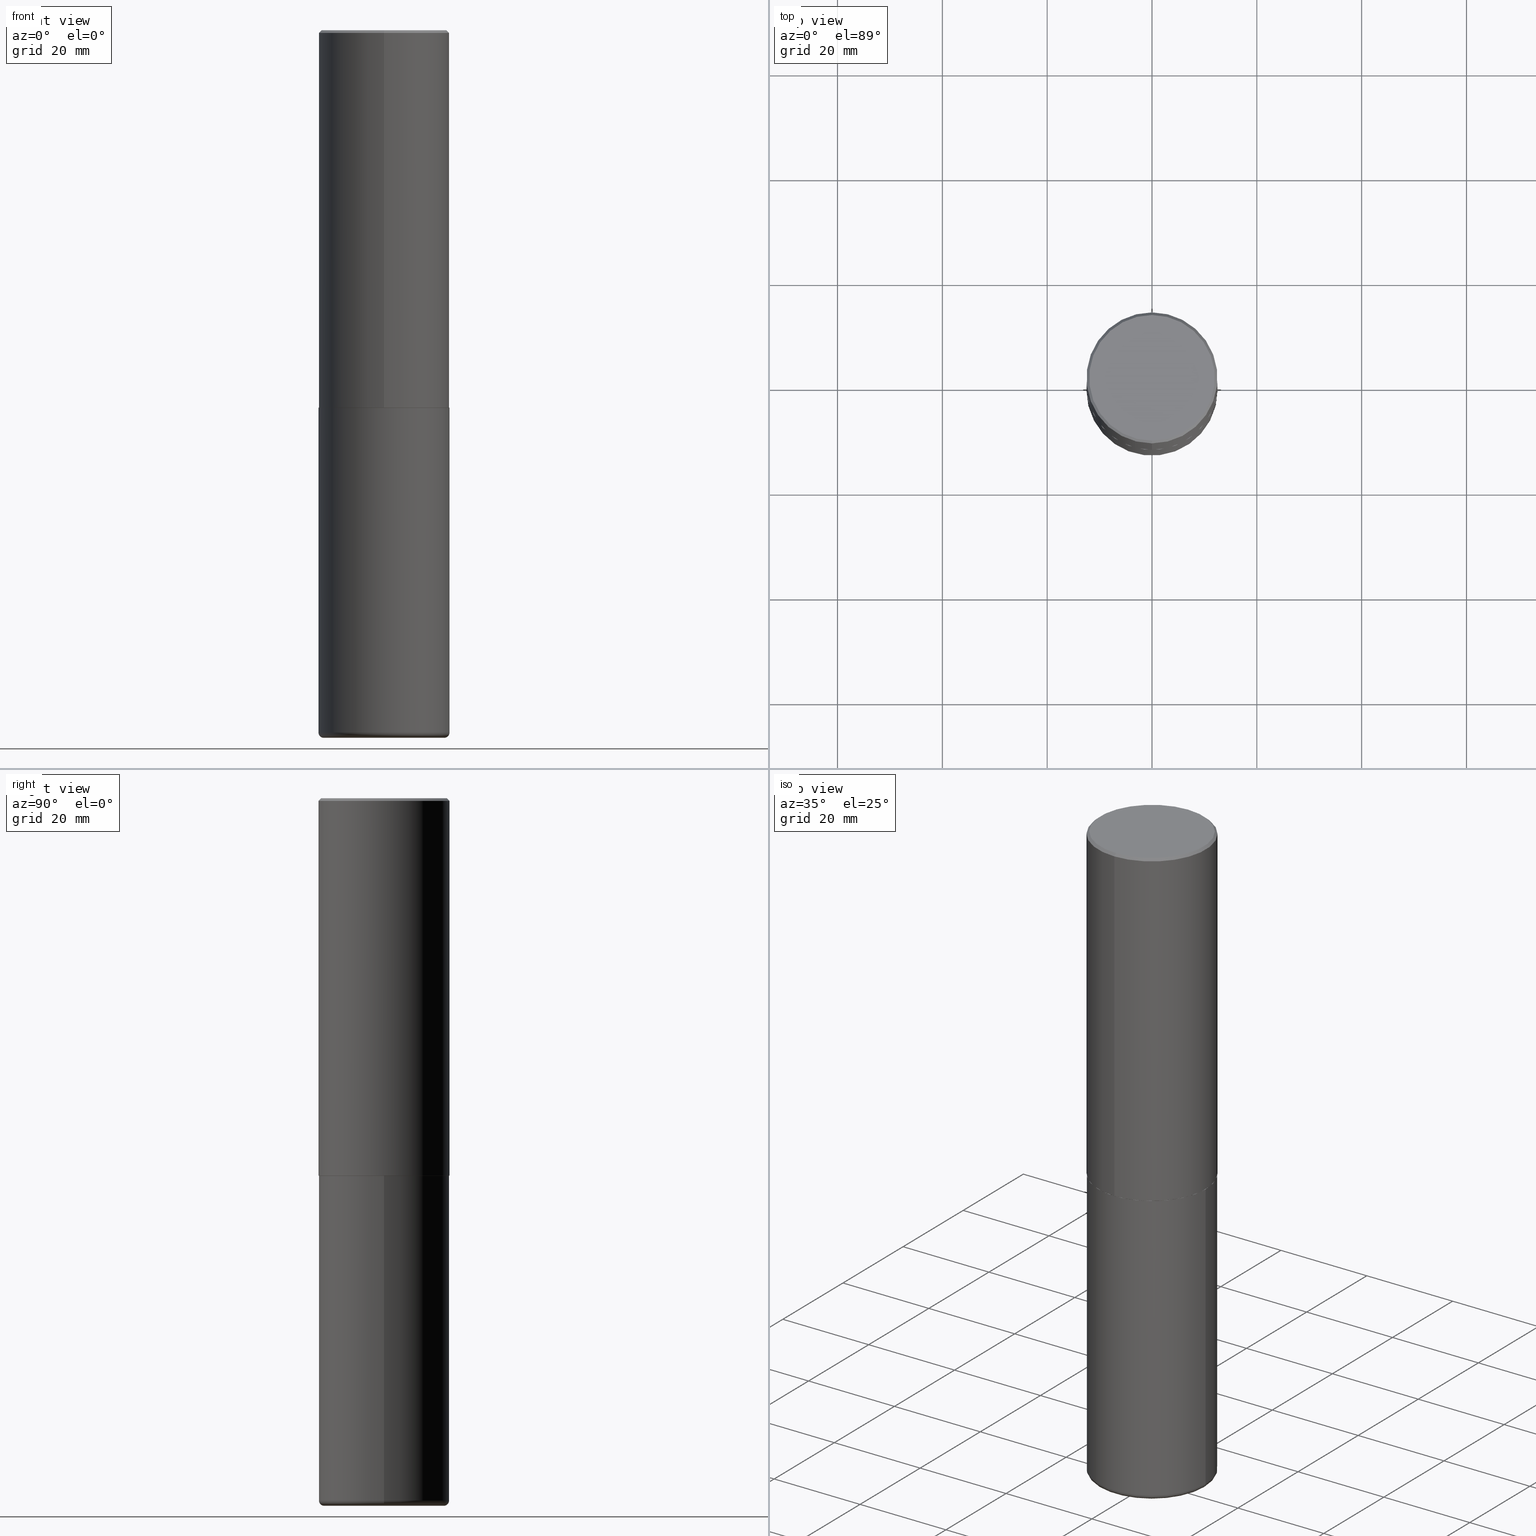
[diagram: canonical four-view strip — front | top / right | iso, engineering-drawing reading convention]
A machine part, canonical four-view strip (front | top / right | iso — engineering-drawing reading convention). The complete STEP part file that produces these views, byte-faithful:
ISO-10303-21;
HEADER;
FILE_DESCRIPTION (( 'STEP AP203' ),
    '1' );
FILE_NAME ('74868.STEP',
    '2024-05-02T19:25:24',
    ( '' ),
    ( '' ),
    'SwSTEP 2.0',
    'SolidWorks 2023',
    '' );
FILE_SCHEMA (( 'CONFIG_CONTROL_DESIGN' ));
ENDSEC;

DATA;
#1 = CARTESIAN_POINT ( 'NONE',  ( -0.4921500000000000874, -1.492272287715756368E-14, -5.275600000000000733 ) ) ;
#2 = PRODUCT_DEFINITION_FORMATION_WITH_SPECIFIED_SOURCE ( 'ANY', '', #389, .NOT_KNOWN. ) ;
#3 = CC_DESIGN_DATE_AND_TIME_ASSIGNMENT ( #406, #139, ( #374 ) ) ;
#4 = AXIS2_PLACEMENT_3D ( 'NONE', #97, #158, #262 ) ;
#5 = ADVANCED_FACE ( 'NONE', ( #143 ), #196, .T. ) ;
#6 =( CONVERSION_BASED_UNIT ( 'INCH', #212 ) LENGTH_UNIT ( ) NAMED_UNIT ( #299 ) );
#7 = CIRCLE ( 'NONE', #398, 0.4921500000000003094 ) ;
#8 = PERSON_AND_ORGANIZATION ( #223, #73 ) ;
#9 = CC_DESIGN_PERSON_AND_ORGANIZATION_ASSIGNMENT ( #369, #48, ( #2 ) ) ;
#10 = DIRECTION ( 'NONE',  ( 1.000000000000000000, -6.982962677686269077E-15, 0.000000000000000000 ) ) ;
#11 = ORIENTED_EDGE ( 'NONE', *, *, #378, .F. ) ;
#12 = DIRECTION ( 'NONE',  ( -2.445229172240879899E-29, 3.491824508290438219E-15, 1.000000000000000000 ) ) ;
#13 = DIRECTION ( 'NONE',  ( -6.982962677686265922E-15, -1.000000000000000000, 3.330506545156063891E-15 ) ) ;
#14 = ORIENTED_EDGE ( 'NONE', *, *, #307, .T. ) ;
#15 = PERSON_AND_ORGANIZATION ( #223, #73 ) ;
#16 = EDGE_LOOP ( 'NONE', ( #203, #291, #311, #130 ) ) ;
#17 = ADVANCED_FACE ( 'NONE', ( #156 ), #305, .T. ) ;
#18 = VERTEX_POINT ( 'NONE', #94 ) ;
#19 = AXIS2_PLACEMENT_3D ( 'NONE', #117, #91, #413 ) ;
#20 = CALENDAR_DATE ( 2024, 2, 5 ) ;
#21 = CIRCLE ( 'NONE', #165, 0.4721499999999997921 ) ;
#22 = APPLICATION_CONTEXT ( 'configuration controlled 3d designs of mechanical parts and assemblies' ) ;
#23 = ORIENTED_EDGE ( 'NONE', *, *, #392, .T. ) ;
#24 = UNCERTAINTY_MEASURE_WITH_UNIT (LENGTH_MEASURE( 1.000000000000000082E-05 ), #6, 'distance_accuracy_value', 'NONE');
#25 = AXIS2_PLACEMENT_3D ( 'NONE', #87, #54, #226 ) ;
#26 =( GEOMETRIC_REPRESENTATION_CONTEXT ( 3 ) GLOBAL_UNCERTAINTY_ASSIGNED_CONTEXT ( ( #24 ) ) GLOBAL_UNIT_ASSIGNED_CONTEXT ( ( #6, #45, #358 ) ) REPRESENTATION_CONTEXT ( 'NONE', 'WORKASPACE' ) );
#27 = ADVANCED_FACE ( 'NONE', ( #228 ), #391, .T. ) ;
#28 = DIRECTION ( 'NONE',  ( -6.982962677686265922E-15, -1.000000000000000000, 3.495297233588267070E-15 ) ) ;
#29 = CARTESIAN_POINT ( 'NONE',  ( 4.890458344481786073E-31, -6.983649016580912824E-17, -0.02000000000000010797 ) ) ;
#30 = DIRECTION ( 'NONE',  ( 2.438088387897960049E-29, -3.491481338843145188E-15, -1.000000000000000000 ) ) ;
#31 = APPROVAL_PERSON_ORGANIZATION ( #175, #416, #76 ) ;
#32 = EDGE_CURVE ( 'NONE', #118, #287, #21, .T. ) ;
#33 = ORIENTED_EDGE ( 'NONE', *, *, #36, .F. ) ;
#34 = LINE ( 'NONE', #160, #99 ) ;
#35 = DIRECTION ( 'NONE',  ( -6.982962677686265922E-15, -1.000000000000000000, 3.491824508290437824E-15 ) ) ;
#36 = EDGE_CURVE ( 'NONE', #258, #82, #153, .T. ) ;
#37 = CC_DESIGN_APPROVAL ( #172, ( #295 ) ) ;
#38 = CIRCLE ( 'NONE', #346, 0.4921499999999999209 ) ;
#39 = FACE_OUTER_BOUND ( 'NONE', #44, .T. ) ;
#40 = DIRECTION ( 'NONE',  ( -6.982962677686265922E-15, -1.000000000000000000, 3.337287582609300506E-15 ) ) ;
#41 = CALENDAR_DATE ( 2024, 2, 5 ) ;
#42 = EDGE_CURVE ( 'NONE', #318, #244, #89, .T. ) ;
#43 = CARTESIAN_POINT ( 'NONE',  ( 1.299766670487400442E-28, -1.855722331595132604E-14, -5.315000000000001279 ) ) ;
#44 = EDGE_LOOP ( 'NONE', ( #14, #134, #47, #70 ) ) ;
#45 =( NAMED_UNIT ( * ) PLANE_ANGLE_UNIT ( ) SI_UNIT ( $, .RADIAN. ) );
#46 = CARTESIAN_POINT ( 'NONE',  ( -3.436665081823297354E-15, -0.4921500000000001984, 1.718501431755139742E-15 ) ) ;
#47 = ORIENTED_EDGE ( 'NONE', *, *, #90, .F. ) ;
#48 = PERSON_AND_ORGANIZATION_ROLE ( 'design_supplier' ) ;
#49 = CARTESIAN_POINT ( 'NONE',  ( -0.4921499999999999764, -1.066154447716645114E-14, -2.834700000000000220 ) ) ;
#50 = LINE ( 'NONE', #137, #221 ) ;
#51 = ORIENTED_EDGE ( 'NONE', *, *, #225, .T. ) ;
#52 = DIRECTION ( 'NONE',  ( 1.000000000000000000, 0.000000000000000000, 0.000000000000000000 ) ) ;
#53 = DIRECTION ( 'NONE',  ( -2.445468806185136597E-29, 3.491481338843145583E-15, 1.000000000000000000 ) ) ;
#54 = DIRECTION ( 'NONE',  ( -2.445229172240879339E-29, 3.491824508290438613E-15, 1.000000000000000000 ) ) ;
#55 = ORIENTED_EDGE ( 'NONE', *, *, #347, .T. ) ;
#56 = MECHANICAL_CONTEXT ( 'NONE', #147, 'mechanical' ) ;
#57 = EDGE_LOOP ( 'NONE', ( #181, #340, #55, #408 ) ) ;
#58 = CIRCLE ( 'NONE', #129, 0.4911499999999999755 ) ;
#59 = ORIENTED_EDGE ( 'NONE', *, *, #298, .T. ) ;
#60 = AXIS2_PLACEMENT_3D ( 'NONE', #135, #72, #245 ) ;
#61 = FACE_OUTER_BOUND ( 'NONE', #57, .T. ) ;
#62 = CLOSED_SHELL ( 'NONE', ( #17, #363, #328, #370, #210, #27, #341, #263 ) ) ;
#63 = CC_DESIGN_DATE_AND_TIME_ASSIGNMENT ( #361, #213, ( #295 ) ) ;
#64 = CARTESIAN_POINT ( 'NONE',  ( -3.436665081823228329E-15, -0.4921500000000101904, -2.833699999999998997 ) ) ;
#65 = CONICAL_SURFACE ( 'NONE', #179, 0.4921500000000000319, 0.7853981633974452814 ) ;
#66 = PLANE ( 'NONE',  #290 ) ;
#67 = DIRECTION ( 'NONE',  ( -2.445229172240879899E-29, 3.491824508290438219E-15, 1.000000000000000000 ) ) ;
#68 = AXIS2_PLACEMENT_3D ( 'NONE', #289, #387, #197 ) ;
#69 = CARTESIAN_POINT ( 'NONE',  ( 3.436665081823296565E-15, 0.4921499999999999764, -0.02000000000000182535 ) ) ;
#70 = ORIENTED_EDGE ( 'NONE', *, *, #225, .F. ) ;
#71 = EDGE_CURVE ( 'NONE', #287, #18, #268, .T. ) ;
#72 = DIRECTION ( 'NONE',  ( 2.438088387897960049E-29, -3.491481338843145188E-15, -1.000000000000000000 ) ) ;
#73 = ORGANIZATION ( 'UNSPECIFIED', 'UNSPECIFIED', '' ) ;
#74 = VERTEX_POINT ( 'NONE', #64 ) ;
#75 = DIRECTION ( 'NONE',  ( -6.982962677686265922E-15, -1.000000000000000000, 3.330506545156063891E-15 ) ) ;
#76 = APPROVAL_ROLE ( '' ) ;
#77 = DIRECTION ( 'NONE',  ( 1.000000000000000000, -6.982962677686265922E-15, 4.876176775795935793E-29 ) ) ;
#78 = CC_DESIGN_PERSON_AND_ORGANIZATION_ASSIGNMENT ( #178, #312, ( #295 ) ) ;
#79 = ORIENTED_EDGE ( 'NONE', *, *, #404, .F. ) ;
#80 = ORIENTED_EDGE ( 'NONE', *, *, #152, .F. ) ;
#81 = CARTESIAN_POINT ( 'NONE',  ( 0.4921500000000000874, -2.185632403302419787E-14, -5.275600000000000733 ) ) ;
#82 = VERTEX_POINT ( 'NONE', #1 ) ;
#83 = APPROVAL_ROLE ( '' ) ;
#84 = CIRCLE ( 'NONE', #217, 0.4921500000000000319 ) ;
#85 = ORIENTED_EDGE ( 'NONE', *, *, #319, .T. ) ;
#86 = DIRECTION ( 'NONE',  ( -2.445468806185136597E-29, 3.491481338843145583E-15, 1.000000000000000000 ) ) ;
#87 = CARTESIAN_POINT ( 'NONE',  ( 6.931491134551223323E-29, -9.898274933650907147E-15, -2.834700000000000220 ) ) ;
#88 = DIRECTION ( 'NONE',  ( 1.000000000000000000, -6.982962677686280910E-15, 0.000000000000000000 ) ) ;
#89 = LINE ( 'NONE', #352, #366 ) ;
#90 = EDGE_CURVE ( 'NONE', #335, #82, #92, .T. ) ;
#91 = DIRECTION ( 'NONE',  ( -2.445468806185136597E-29, 3.491481338843145583E-15, 1.000000000000000000 ) ) ;
#92 = CIRCLE ( 'NONE', #330, 0.4921499999999999209 ) ;
#93 = AXIS2_PLACEMENT_3D ( 'NONE', #29, #151, #411 ) ;
#94 = CARTESIAN_POINT ( 'NONE',  ( 3.436665081823296565E-15, 0.4921499999999999764, -0.02000000000000182535 ) ) ;
#95 = CARTESIAN_POINT ( 'NONE',  ( 0.4527499999999999858, -2.158119530352335944E-14, -5.275600000000000733 ) ) ;
#96 = EDGE_LOOP ( 'NONE', ( #368, #11 ) ) ;
#97 = CARTESIAN_POINT ( 'NONE',  ( 1.290131523391030870E-28, -1.841965895120090052E-14, -5.275600000000000733 ) ) ;
#98 = DIRECTION ( 'NONE',  ( -2.445468806185136597E-29, 3.491481338843145583E-15, 1.000000000000000000 ) ) ;
#99 = VECTOR ( 'NONE', #414, 39.37007874015748143 ) ;
#100 = ADVANCED_FACE ( 'NONE', ( #200 ), #326, .T. ) ;
#101 = CARTESIAN_POINT ( 'NONE',  ( 6.929045905378983914E-29, -9.894783109142616722E-15, -2.833700000000000330 ) ) ;
#102 = PERSON_AND_ORGANIZATION_ROLE ( 'creator' ) ;
#103 = CARTESIAN_POINT ( 'NONE',  ( 6.929045905378983914E-29, -9.894783109142616722E-15, -2.833700000000000330 ) ) ;
#104 = CARTESIAN_POINT ( 'NONE',  ( 3.493383360364602601E-15, 0.4911499999999900390, -2.834700000000001996 ) ) ;
#105 = EDGE_LOOP ( 'NONE', ( #284, #110, #400, #371 ) ) ;
#106 = DIRECTION ( 'NONE',  ( -2.445229172240879899E-29, 3.491824508290438219E-15, 1.000000000000000000 ) ) ;
#107 = EDGE_CURVE ( 'NONE', #18, #251, #150, .T. ) ;
#108 = CC_DESIGN_APPROVAL ( #416, ( #2 ) ) ;
#109 = DIRECTION ( 'NONE',  ( -6.982962677686265922E-15, -1.000000000000000000, 3.491824508290437824E-15 ) ) ;
#110 = ORIENTED_EDGE ( 'NONE', *, *, #404, .T. ) ;
#111 = APPROVAL_STATUS ( 'not_yet_approved' ) ;
#112 = CARTESIAN_POINT ( 'NONE',  ( 6.932170424893007423E-29, -9.897302151218665974E-15, -2.834700000000000220 ) ) ;
#113 = CARTESIAN_POINT ( 'NONE',  ( 0.4527499999999999858, -2.171875966827378497E-14, -5.315000000000001279 ) ) ;
#114 = ORIENTED_EDGE ( 'NONE', *, *, #231, .T. ) ;
#115 = APPROVAL_DATE_TIME ( #207, #416 ) ;
#116 = DIRECTION ( 'NONE',  ( 1.000000000000000000, -6.982962677686265922E-15, 0.000000000000000000 ) ) ;
#117 = CARTESIAN_POINT ( 'NONE',  ( 6.932170424893007423E-29, -9.897302151218665974E-15, -2.834700000000000220 ) ) ;
#118 = VERTEX_POINT ( 'NONE', #362 ) ;
#119 = FACE_OUTER_BOUND ( 'NONE', #314, .T. ) ;
#120 = AXIS2_PLACEMENT_3D ( 'NONE', #220, #180, #257 ) ;
#121 = EDGE_CURVE ( 'NONE', #74, #251, #302, .T. ) ;
#122 = ORIENTED_EDGE ( 'NONE', *, *, #231, .F. ) ;
#123 = DIRECTION ( 'NONE',  ( 1.000000000000000000, -6.982962677686265922E-15, 4.876176775795935793E-29 ) ) ;
#124 = AXIS2_PLACEMENT_3D ( 'NONE', #112, #53, #116 ) ;
#125 = CARTESIAN_POINT ( 'NONE',  ( -0.4527499999999999858, -1.513148197847751654E-14, -5.315000000000001279 ) ) ;
#126 = LOCAL_TIME ( 15, 25, 24.00000000000000000, #402 ) ;
#127 = CARTESIAN_POINT ( 'NONE',  ( -0.4527499999999999858, -1.520267671504704703E-14, -5.275600000000000733 ) ) ;
#128 = DIRECTION ( 'NONE',  ( -6.982962677686265922E-15, -1.000000000000000000, 3.337287582609300506E-15 ) ) ;
#129 = AXIS2_PLACEMENT_3D ( 'NONE', #265, #385, #128 ) ;
#130 = ORIENTED_EDGE ( 'NONE', *, *, #121, .F. ) ;
#131 = DIRECTION ( 'NONE',  ( 5.024295867789434219E-15, 0.7071067811867430830, 0.7071067811863519514 ) ) ;
#132 = AXIS2_PLACEMENT_3D ( 'NONE', #379, #266, #230 ) ;
#133 = APPROVAL_ROLE ( '' ) ;
#134 = ORIENTED_EDGE ( 'NONE', *, *, #36, .T. ) ;
#135 = CARTESIAN_POINT ( 'NONE',  ( 4.039873082139847440E-29, -3.138529362965696164E-14, -5.315000000000001279 ) ) ;
#136 = COORDINATED_UNIVERSAL_TIME_OFFSET ( 5, 0, .BEHIND. ) ;
#137 = CARTESIAN_POINT ( 'NONE',  ( -3.376394089603258656E-15, -0.4921500000000000874, -0.01999999999999838712 ) ) ;
#138 = EDGE_LOOP ( 'NONE', ( #23, #343, #80, #122 ) ) ;
#139 = DATE_TIME_ROLE ( 'classification_date' ) ;
#140 = CARTESIAN_POINT ( 'NONE',  ( -0.4921499999999999764, 3.496936074043332897E-15, -2.420853904668951509E-29 ) ) ;
#141 = ORIENTED_EDGE ( 'NONE', *, *, #32, .T. ) ;
#142 = DIRECTION ( 'NONE',  ( 0.000000000000000000, 0.000000000000000000, 1.000000000000000000 ) ) ;
#143 = FACE_OUTER_BOUND ( 'NONE', #145, .T. ) ;
#144 = CIRCLE ( 'NONE', #19, 0.4921499999999999764 ) ;
#145 = EDGE_LOOP ( 'NONE', ( #33, #364, #51, #211 ) ) ;
#146 = EDGE_CURVE ( 'NONE', #244, #18, #271, .T. ) ;
#147 = APPLICATION_CONTEXT ( 'configuration controlled 3d designs of mechanical parts and assemblies' ) ;
#148 = VERTEX_POINT ( 'NONE', #241 ) ;
#149 = CIRCLE ( 'NONE', #388, 0.4527499999999999858 ) ;
#150 = CIRCLE ( 'NONE', #202, 0.4921500000000000319 ) ;
#151 = DIRECTION ( 'NONE',  ( 2.445229172240879899E-29, -3.491824508290438219E-15, -1.000000000000000000 ) ) ;
#152 = EDGE_CURVE ( 'NONE', #74, #244, #182, .T. ) ;
#153 = CIRCLE ( 'NONE', #403, 0.03940000000000026814 ) ;
#154 = VECTOR ( 'NONE', #415, 39.37007874015748143 ) ;
#155 = FACE_OUTER_BOUND ( 'NONE', #105, .T. ) ;
#156 = FACE_OUTER_BOUND ( 'NONE', #138, .T. ) ;
#157 = DIRECTION ( 'NONE',  ( -1.000000000000000000, 6.982962677686265922E-15, -4.876176775795935793E-29 ) ) ;
#158 = DIRECTION ( 'NONE',  ( -2.445468806185136597E-29, 3.491481338843145583E-15, 1.000000000000000000 ) ) ;
#159 = PRODUCT_RELATED_PRODUCT_CATEGORY ( 'detail', '', ( #389 ) ) ;
#160 = CARTESIAN_POINT ( 'NONE',  ( 0.4921499999999999764, -3.436665081823295777E-15, 2.399810400207969603E-29 ) ) ;
#161 = CARTESIAN_POINT ( 'NONE',  ( -3.429682119145539948E-15, -0.4911500000000098565, -2.834699999999998443 ) ) ;
#162 = CC_DESIGN_SECURITY_CLASSIFICATION ( #374, ( #2 ) ) ;
#163 = ADVANCED_FACE ( 'NONE', ( #39 ), #195, .T. ) ;
#164 = DIRECTION ( 'NONE',  ( -2.445229172240879899E-29, 3.491824508290438613E-15, 1.000000000000000000 ) ) ;
#165 = AXIS2_PLACEMENT_3D ( 'NONE', #235, #67, #35 ) ;
#166 = DIRECTION ( 'NONE',  ( -6.982962677686265922E-15, -1.000000000000000000, 3.495297233588267070E-15 ) ) ;
#167 = PLANE ( 'NONE',  #60 ) ;
#168 = DIRECTION ( 'NONE',  ( -2.445468806185136597E-29, 3.491481338843145583E-15, 1.000000000000000000 ) ) ;
#169 = VERTEX_POINT ( 'NONE', #49 ) ;
#170 = DIRECTION ( 'NONE',  ( 1.000000000000000000, -6.982962677686269077E-15, 0.000000000000000000 ) ) ;
#171 = DIRECTION ( 'NONE',  ( -2.445229172240879899E-29, 3.491824508290438219E-15, 1.000000000000000000 ) ) ;
#172 = APPROVAL ( #399, 'UNSPECIFIED' ) ;
#173 = CIRCLE ( 'NONE', #124, 0.4921499999999999764 ) ;
#174 = ORIENTED_EDGE ( 'NONE', *, *, #392, .F. ) ;
#175 = PERSON_AND_ORGANIZATION ( #223, #73 ) ;
#176 = DIRECTION ( 'NONE',  ( 1.000000000000000000, -6.982962677686262766E-15, 4.883557194083111219E-29 ) ) ;
#177 = ORIENTED_EDGE ( 'NONE', *, *, #183, .F. ) ;
#178 = PERSON_AND_ORGANIZATION ( #223, #73 ) ;
#179 = AXIS2_PLACEMENT_3D ( 'NONE', #313, #342, #367 ) ;
#180 = DIRECTION ( 'NONE',  ( -2.445229172240879899E-29, 3.491824508290438219E-15, 1.000000000000000000 ) ) ;
#181 = ORIENTED_EDGE ( 'NONE', *, *, #32, .F. ) ;
#182 = CIRCLE ( 'NONE', #248, 0.4921500000000003094 ) ;
#183 = EDGE_CURVE ( 'NONE', #148, #169, #173, .T. ) ;
#184 = DATE_AND_TIME ( #274, #126 ) ;
#185 = EDGE_LOOP ( 'NONE', ( #222, #338, #114, #79 ) ) ;
#186 = CARTESIAN_POINT ( 'NONE',  ( 4.890458344481786073E-31, -6.983649016580912824E-17, -0.02000000000000010797 ) ) ;
#187 = ADVANCED_FACE ( 'NONE', ( #256 ), #373, .T. ) ;
#188 = CIRCLE ( 'NONE', #208, 0.4911499999999999755 ) ;
#189 = CARTESIAN_POINT ( 'NONE',  ( -3.429682119145539948E-15, -0.4911500000000098565, -2.834699999999998443 ) ) ;
#190 = CARTESIAN_POINT ( 'NONE',  ( 0.000000000000000000, 0.000000000000000000, 0.000000000000000000 ) ) ;
#191 = DIRECTION ( 'NONE',  ( -1.000000000000000000, 7.105427357601027102E-15, 0.000000000000000000 ) ) ;
#192 = CARTESIAN_POINT ( 'NONE',  ( -3.376394089603258656E-15, -0.4921500000000000874, -0.01999999999999838712 ) ) ;
#193 = CC_DESIGN_PERSON_AND_ORGANIZATION_ASSIGNMENT ( #252, #309, ( #374 ) ) ;
#194 = LOCAL_TIME ( 15, 25, 24.00000000000000000, #219 ) ;
#195 = TOROIDAL_SURFACE ( 'NONE', #229, 0.4527499999999999858, 0.03940000000000030284 ) ;
#196 = TOROIDAL_SURFACE ( 'NONE', #4, 0.4527499999999999858, 0.03940000000000030284 ) ;
#197 = DIRECTION ( 'NONE',  ( -6.982962677686265922E-15, -1.000000000000000000, 3.337287582609300506E-15 ) ) ;
#198 = DESIGN_CONTEXT ( 'detailed design', #22, 'design' ) ;
#199 = DIRECTION ( 'NONE',  ( -4.851104656540949287E-15, -0.7071067811865477948, -0.7071067811865472397 ) ) ;
#200 = FACE_OUTER_BOUND ( 'NONE', #327, .T. ) ;
#201 = MANIFOLD_SOLID_BREP ( 'Body-Move/Copy2[2]', #62 ) ;
#202 = AXIS2_PLACEMENT_3D ( 'NONE', #204, #297, #166 ) ;
#203 = ORIENTED_EDGE ( 'NONE', *, *, #152, .T. ) ;
#204 = CARTESIAN_POINT ( 'NONE',  ( 4.890458344481786073E-31, -6.983649016580912824E-17, -0.02000000000000010797 ) ) ;
#205 = VECTOR ( 'NONE', #280, 39.37007874015748143 ) ;
#206 = FACE_OUTER_BOUND ( 'NONE', #96, .T. ) ;
#207 = DATE_AND_TIME ( #41, #194 ) ;
#208 = AXIS2_PLACEMENT_3D ( 'NONE', #359, #106, #40 ) ;
#209 = CARTESIAN_POINT ( 'NONE',  ( 0.000000000000000000, 0.000000000000000000, 0.000000000000000000 ) ) ;
#210 = ADVANCED_FACE ( 'NONE', ( #155 ), #344, .T. ) ;
#211 = ORIENTED_EDGE ( 'NONE', *, *, #324, .F. ) ;
#212 = LENGTH_MEASURE_WITH_UNIT ( LENGTH_MEASURE( 0.02539999999999999897 ), #300 );
#213 = DATE_TIME_ROLE ( 'creation_date' ) ;
#214 = EDGE_LOOP ( 'NONE', ( #59, #141 ) ) ;
#215 = ORIENTED_EDGE ( 'NONE', *, *, #261, .F. ) ;
#216 = APPLICATION_PROTOCOL_DEFINITION ( 'international standard', 'config_control_design', 1994, #22 ) ;
#217 = AXIS2_PLACEMENT_3D ( 'NONE', #186, #376, #28 ) ;
#218 = ORIENTED_EDGE ( 'NONE', *, *, #324, .T. ) ;
#219 = COORDINATED_UNIVERSAL_TIME_OFFSET ( 5, 0, .BEHIND. ) ;
#220 = CARTESIAN_POINT ( 'NONE',  ( 0.000000000000000000, 0.000000000000000000, 0.000000000000000000 ) ) ;
#221 = VECTOR ( 'NONE', #199, 39.37007874015748143 ) ;
#222 = ORIENTED_EDGE ( 'NONE', *, *, #42, .F. ) ;
#223 = PERSON ( 'UNSPECIFIED', 'UNSPECIFIED', 'UNSPECIFIED', ('UNSPECIFIED'), ('UNSPECIFIED'), ('UNSPECIFIED') ) ;
#224 = CARTESIAN_POINT ( 'NONE',  ( 6.932170424893007423E-29, -9.897302151218665974E-15, -2.834700000000000220 ) ) ;
#225 = EDGE_CURVE ( 'NONE', #355, #335, #317, .T. ) ;
#226 = DIRECTION ( 'NONE',  ( -6.982962677686265922E-15, -1.000000000000000000, 3.491824508290438613E-15 ) ) ;
#227 = AXIS2_PLACEMENT_3D ( 'NONE', #285, #142, #52 ) ;
#228 = FACE_OUTER_BOUND ( 'NONE', #185, .T. ) ;
#229 = AXIS2_PLACEMENT_3D ( 'NONE', #316, #410, #176 ) ;
#230 = DIRECTION ( 'NONE',  ( -6.982962677686265922E-15, -1.000000000000000000, 3.337287582609300506E-15 ) ) ;
#231 = EDGE_CURVE ( 'NONE', #281, #74, #322, .T. ) ;
#232 = DIRECTION ( 'NONE',  ( 4.937700262164532265E-15, 0.7071067811865429098, -0.7071067811865521247 ) ) ;
#233 = AXIS2_PLACEMENT_3D ( 'NONE', #209, #334, #77 ) ;
#234 = APPROVAL_PERSON_ORGANIZATION ( #246, #172, #133 ) ;
#235 = CARTESIAN_POINT ( 'NONE',  ( -6.892706176078369160E-45, 9.842889422106222579E-31, 2.818838518011663701E-16 ) ) ;
#236 = CARTESIAN_POINT ( 'NONE',  ( 3.297005828269569180E-15, 0.4721499999999997921, -1.507723015688746393E-15 ) ) ;
#237 = CIRCLE ( 'NONE', #337, 0.4527499999999999858 ) ;
#238 = EDGE_CURVE ( 'NONE', #318, #281, #58, .T. ) ;
#239 = CC_DESIGN_APPROVAL ( #383, ( #374 ) ) ;
#240 = VECTOR ( 'NONE', #164, 39.37007874015748143 ) ;
#241 = CARTESIAN_POINT ( 'NONE',  ( 0.4921499999999999764, -1.333396723304196175E-14, -2.834700000000000220 ) ) ;
#242 = CARTESIAN_POINT ( 'NONE',  ( 1.299766670487400442E-28, -1.855722331595132604E-14, -5.315000000000001279 ) ) ;
#243 = ADVANCED_FACE ( 'NONE', ( #382 ), #66, .F. ) ;
#244 = VERTEX_POINT ( 'NONE', #412 ) ;
#245 = DIRECTION ( 'NONE',  ( -1.000000000000000000, 6.982962677686265922E-15, -4.876176775795935793E-29 ) ) ;
#246 = PERSON_AND_ORGANIZATION ( #223, #73 ) ;
#247 = ORIENTED_EDGE ( 'NONE', *, *, #319, .F. ) ;
#248 = AXIS2_PLACEMENT_3D ( 'NONE', #103, #171, #13 ) ;
#249 = DATE_AND_TIME ( #20, #320 ) ;
#250 = FACE_OUTER_BOUND ( 'NONE', #16, .T. ) ;
#251 = VERTEX_POINT ( 'NONE', #192 ) ;
#252 = PERSON_AND_ORGANIZATION ( #223, #73 ) ;
#253 = DIRECTION ( 'NONE',  ( -2.445468806185136597E-29, 3.491481338843145583E-15, 1.000000000000000000 ) ) ;
#254 = ORIENTED_EDGE ( 'NONE', *, *, #90, .T. ) ;
#255 = CALENDAR_DATE ( 2024, 2, 5 ) ;
#256 = FACE_OUTER_BOUND ( 'NONE', #339, .T. ) ;
#257 = DIRECTION ( 'NONE',  ( -6.982962677686266711E-15, -1.000000000000000000, 3.491824508290437824E-15 ) ) ;
#258 = VERTEX_POINT ( 'NONE', #125 ) ;
#259 = CARTESIAN_POINT ( 'NONE',  ( 0.000000000000000000, 0.000000000000000000, 0.000000000000000000 ) ) ;
#260 = PLANE ( 'NONE',  #25 ) ;
#261 = EDGE_CURVE ( 'NONE', #335, #148, #34, .T. ) ;
#262 = DIRECTION ( 'NONE',  ( 1.000000000000000000, -6.982962677686262766E-15, 4.883557194083111219E-29 ) ) ;
#263 = ADVANCED_FACE ( 'NONE', ( #293 ), #325, .F. ) ;
#264 = AXIS2_PLACEMENT_3D ( 'NONE', #259, #86, #123 ) ;
#265 = CARTESIAN_POINT ( 'NONE',  ( 6.931491134551223323E-29, -9.898274933650907147E-15, -2.834700000000000220 ) ) ;
#266 = DIRECTION ( 'NONE',  ( -2.445229172240879899E-29, 3.491824508290438219E-15, 1.000000000000000000 ) ) ;
#267 = EDGE_CURVE ( 'NONE', #118, #251, #50, .T. ) ;
#268 = LINE ( 'NONE', #69, #283 ) ;
#269 = DIRECTION ( 'NONE',  ( -2.445229172240879899E-29, 3.491824508290438219E-15, 1.000000000000000000 ) ) ;
#270 = DIRECTION ( 'NONE',  ( -2.445229172240879899E-29, 3.491824508290438613E-15, 1.000000000000000000 ) ) ;
#271 = LINE ( 'NONE', #331, #240 ) ;
#272 = CC_DESIGN_PERSON_AND_ORGANIZATION_ASSIGNMENT ( #301, #102, ( #2 ) ) ;
#273 = DIRECTION ( 'NONE',  ( -2.445468806185136597E-29, 3.491481338843145583E-15, 1.000000000000000000 ) ) ;
#274 = CALENDAR_DATE ( 2024, 2, 5 ) ;
#275 = DIRECTION ( 'NONE',  ( 2.445229172240879339E-29, -3.491824508290438613E-15, -1.000000000000000000 ) ) ;
#276 = ORIENTED_EDGE ( 'NONE', *, *, #267, .F. ) ;
#277 = COORDINATED_UNIVERSAL_TIME_OFFSET ( 5, 0, .BEHIND. ) ;
#278 = ORIENTED_EDGE ( 'NONE', *, *, #321, .T. ) ;
#279 = APPROVAL_DATE_TIME ( #184, #172 ) ;
#280 = DIRECTION ( 'NONE',  ( -2.445468806185136877E-29, 3.491481338843145188E-15, 1.000000000000000000 ) ) ;
#281 = VERTEX_POINT ( 'NONE', #161 ) ;
#282 = APPROVAL_STATUS ( 'not_yet_approved' ) ;
#283 = VECTOR ( 'NONE', #232, 39.37007874015748143 ) ;
#284 = ORIENTED_EDGE ( 'NONE', *, *, #146, .F. ) ;
#285 = CARTESIAN_POINT ( 'NONE',  ( 0.000000000000000000, 0.000000000000000000, 0.000000000000000000 ) ) ;
#286 = FACE_OUTER_BOUND ( 'NONE', #375, .T. ) ;
#287 = VERTEX_POINT ( 'NONE', #332 ) ;
#288 = AXIS2_PLACEMENT_3D ( 'NONE', #190, #351, #417 ) ;
#289 = CARTESIAN_POINT ( 'NONE',  ( 6.931491134551223323E-29, -9.898274933650907147E-15, -2.834700000000000220 ) ) ;
#290 = AXIS2_PLACEMENT_3D ( 'NONE', #224, #30, #157 ) ;
#291 = ORIENTED_EDGE ( 'NONE', *, *, #146, .T. ) ;
#292 = PRODUCT_DEFINITION_SHAPE ( 'NONE', 'NONE',  #295 ) ;
#293 = FACE_OUTER_BOUND ( 'NONE', #214, .T. ) ;
#294 = LOCAL_TIME ( 15, 25, 24.00000000000000000, #136 ) ;
#295 = PRODUCT_DEFINITION ( 'UNKNOWN', '', #2, #198 ) ;
#296 = CARTESIAN_POINT ( 'NONE',  ( -6.892706176078369160E-45, 9.842889422106222579E-31, 2.818838518011663701E-16 ) ) ;
#297 = DIRECTION ( 'NONE',  ( -2.445229172240879899E-29, 3.491824508290438219E-15, 1.000000000000000000 ) ) ;
#298 = EDGE_CURVE ( 'NONE', #287, #118, #401, .T. ) ;
#299 = DIMENSIONAL_EXPONENTS ( 1.000000000000000000, 0.000000000000000000, 0.000000000000000000, 0.000000000000000000, 0.000000000000000000, 0.000000000000000000, 0.000000000000000000 ) ;
#300 =( LENGTH_UNIT ( ) NAMED_UNIT ( * ) SI_UNIT ( $, .METRE. ) );
#301 = PERSON_AND_ORGANIZATION ( #223, #73 ) ;
#302 = LINE ( 'NONE', #46, #323 ) ;
#303 = ORIENTED_EDGE ( 'NONE', *, *, #321, .F. ) ;
#304 = PERSON_AND_ORGANIZATION_ROLE ( 'design_owner' ) ;
#305 = CONICAL_SURFACE ( 'NONE', #68, 0.4911499999999999755, 0.7853981633977213939 ) ;
#306 = DIRECTION ( 'NONE',  ( 6.982962677686265922E-15, 1.000000000000000000, -3.491824508290438613E-15 ) ) ;
#307 = EDGE_CURVE ( 'NONE', #355, #258, #237, .T. ) ;
#308 = EDGE_LOOP ( 'NONE', ( #405, #278 ) ) ;
#309 = PERSON_AND_ORGANIZATION_ROLE ( 'classification_officer' ) ;
#310 = LINE ( 'NONE', #140, #205 ) ;
#311 = ORIENTED_EDGE ( 'NONE', *, *, #347, .F. ) ;
#312 = PERSON_AND_ORGANIZATION_ROLE ( 'creator' ) ;
#313 = CARTESIAN_POINT ( 'NONE',  ( 4.890458344481786073E-31, -6.983649016580912824E-17, -0.02000000000000010797 ) ) ;
#314 = EDGE_LOOP ( 'NONE', ( #174, #360 ) ) ;
#315 = COORDINATED_UNIVERSAL_TIME_OFFSET ( 5, 0, .BEHIND. ) ;
#316 = CARTESIAN_POINT ( 'NONE',  ( 1.290131523391030870E-28, -1.841965895120090052E-14, -5.275600000000000733 ) ) ;
#317 = CIRCLE ( 'NONE', #329, 0.03940000000000026814 ) ;
#318 = VERTEX_POINT ( 'NONE', #104 ) ;
#319 = EDGE_CURVE ( 'NONE', #82, #169, #310, .T. ) ;
#320 = LOCAL_TIME ( 15, 25, 24.00000000000000000, #315 ) ;
#321 = EDGE_CURVE ( 'NONE', #169, #148, #144, .T. ) ;
#322 = LINE ( 'NONE', #189, #154 ) ;
#323 = VECTOR ( 'NONE', #270, 39.37007874015748143 ) ;
#324 = EDGE_CURVE ( 'NONE', #82, #335, #38, .T. ) ;
#325 = PLANE ( 'NONE',  #381 ) ;
#326 = CYLINDRICAL_SURFACE ( 'NONE', #233, 0.4921499999999999764 ) ;
#327 = EDGE_LOOP ( 'NONE', ( #247, #218, #418, #303 ) ) ;
#328 = ADVANCED_FACE ( 'NONE', ( #61 ), #356, .T. ) ;
#329 = AXIS2_PLACEMENT_3D ( 'NONE', #95, #390, #88 ) ;
#330 = AXIS2_PLACEMENT_3D ( 'NONE', #349, #98, #354 ) ;
#331 = CARTESIAN_POINT ( 'NONE',  ( 3.496936074043333686E-15, 0.4921500000000001984, -1.718501431755139742E-15 ) ) ;
#332 = CARTESIAN_POINT ( 'NONE',  ( 3.366835455046432873E-15, 0.4721499999999997921, -1.366781089788163134E-15 ) ) ;
#333 = SECURITY_CLASSIFICATION_LEVEL ( 'unclassified' ) ;
#334 = DIRECTION ( 'NONE',  ( -2.445468806185136597E-29, 3.491481338843145583E-15, 1.000000000000000000 ) ) ;
#335 = VERTEX_POINT ( 'NONE', #81 ) ;
#336 = MANIFOLD_SOLID_BREP ( 'Body-Move/Copy2[1]', #350 ) ;
#337 = AXIS2_PLACEMENT_3D ( 'NONE', #43, #168, #10 ) ;
#338 = ORIENTED_EDGE ( 'NONE', *, *, #238, .T. ) ;
#339 = EDGE_LOOP ( 'NONE', ( #254, #85, #177, #215 ) ) ;
#340 = ORIENTED_EDGE ( 'NONE', *, *, #267, .T. ) ;
#341 = ADVANCED_FACE ( 'NONE', ( #119 ), #260, .F. ) ;
#342 = DIRECTION ( 'NONE',  ( 2.445229172240879899E-29, -3.491824508290438219E-15, -1.000000000000000000 ) ) ;
#343 = ORIENTED_EDGE ( 'NONE', *, *, #42, .T. ) ;
#344 = CYLINDRICAL_SURFACE ( 'NONE', #288, 0.4921500000000001984 ) ;
#345 = LOCAL_TIME ( 15, 25, 24.00000000000000000, #277 ) ;
#346 = AXIS2_PLACEMENT_3D ( 'NONE', #377, #253, #348 ) ;
#347 = EDGE_CURVE ( 'NONE', #251, #18, #84, .T. ) ;
#348 = DIRECTION ( 'NONE',  ( 1.000000000000000000, -6.982962677686266711E-15, 0.000000000000000000 ) ) ;
#349 = CARTESIAN_POINT ( 'NONE',  ( 1.290131523391030870E-28, -1.841965895120090052E-14, -5.275600000000000733 ) ) ;
#350 = CLOSED_SHELL ( 'NONE', ( #187, #163, #243, #100, #5, #396 ) ) ;
#351 = DIRECTION ( 'NONE',  ( -2.445229172240879899E-29, 3.491824508290438219E-15, 1.000000000000000000 ) ) ;
#352 = CARTESIAN_POINT ( 'NONE',  ( 3.489830646685800520E-15, 0.4911499999999900390, -2.834700000000001996 ) ) ;
#353 = AXIS2_PLACEMENT_3D ( 'NONE', #296, #269, #109 ) ;
#354 = DIRECTION ( 'NONE',  ( 1.000000000000000000, -6.982962677686266711E-15, 0.000000000000000000 ) ) ;
#355 = VERTEX_POINT ( 'NONE', #113 ) ;
#356 = CONICAL_SURFACE ( 'NONE', #93, 0.4921500000000000319, 0.7853981633974452814 ) ;
#357 = CC_DESIGN_PERSON_AND_ORGANIZATION_ASSIGNMENT ( #15, #304, ( #389 ) ) ;
#358 =( NAMED_UNIT ( * ) SI_UNIT ( $, .STERADIAN. ) SOLID_ANGLE_UNIT ( ) );
#359 = CARTESIAN_POINT ( 'NONE',  ( 6.931491134551223323E-29, -9.898274933650907147E-15, -2.834700000000000220 ) ) ;
#360 = ORIENTED_EDGE ( 'NONE', *, *, #238, .F. ) ;
#361 = DATE_AND_TIME ( #372, #294 ) ;
#362 = CARTESIAN_POINT ( 'NONE',  ( -3.307789109625542536E-15, -0.4721499999999997921, 1.930548793390495776E-15 ) ) ;
#363 = ADVANCED_FACE ( 'NONE', ( #250 ), #407, .T. ) ;
#364 = ORIENTED_EDGE ( 'NONE', *, *, #378, .T. ) ;
#365 = SHAPE_DEFINITION_REPRESENTATION ( #292, #384 ) ;
#366 = VECTOR ( 'NONE', #131, 39.37007874015748143 ) ;
#367 = DIRECTION ( 'NONE',  ( 6.982962677686265922E-15, 1.000000000000000000, -3.495297233588267070E-15 ) ) ;
#368 = ORIENTED_EDGE ( 'NONE', *, *, #307, .F. ) ;
#369 = PERSON_AND_ORGANIZATION ( #223, #73 ) ;
#370 = ADVANCED_FACE ( 'NONE', ( #286 ), #65, .T. ) ;
#371 = ORIENTED_EDGE ( 'NONE', *, *, #107, .F. ) ;
#372 = CALENDAR_DATE ( 2024, 2, 5 ) ;
#373 = CYLINDRICAL_SURFACE ( 'NONE', #264, 0.4921499999999999764 ) ;
#374 = SECURITY_CLASSIFICATION ( '', '', #333 ) ;
#375 = EDGE_LOOP ( 'NONE', ( #276, #394, #386, #397 ) ) ;
#376 = DIRECTION ( 'NONE',  ( -2.445229172240879899E-29, 3.491824508290438219E-15, 1.000000000000000000 ) ) ;
#377 = CARTESIAN_POINT ( 'NONE',  ( 1.290131523391030870E-28, -1.841965895120090052E-14, -5.275600000000000733 ) ) ;
#378 = EDGE_CURVE ( 'NONE', #258, #355, #149, .T. ) ;
#379 = CARTESIAN_POINT ( 'NONE',  ( 6.931491134551223323E-29, -9.898274933650907147E-15, -2.834700000000000220 ) ) ;
#380 = DIRECTION ( 'NONE',  ( 7.105427357601001859E-15, 1.000000000000000000, -3.491481338843145583E-15 ) ) ;
#381 = AXIS2_PLACEMENT_3D ( 'NONE', #236, #275, #306 ) ;
#382 = FACE_OUTER_BOUND ( 'NONE', #308, .T. ) ;
#383 = APPROVAL ( #111, 'UNSPECIFIED' ) ;
#384 = ADVANCED_BREP_SHAPE_REPRESENTATION ( '74868', ( #336, #201, #227 ), #26 ) ;
#385 = DIRECTION ( 'NONE',  ( -2.445229172240879899E-29, 3.491824508290438219E-15, 1.000000000000000000 ) ) ;
#386 = ORIENTED_EDGE ( 'NONE', *, *, #71, .T. ) ;
#387 = DIRECTION ( 'NONE',  ( -2.445229172240879899E-29, 3.491824508290438219E-15, 1.000000000000000000 ) ) ;
#388 = AXIS2_PLACEMENT_3D ( 'NONE', #242, #273, #170 ) ;
#389 = PRODUCT ( '74868', '74868', '', ( #56 ) ) ;
#390 = DIRECTION ( 'NONE',  ( -6.982962677686266711E-15, -1.000000000000000000, 3.491481338843145583E-15 ) ) ;
#391 = CONICAL_SURFACE ( 'NONE', #132, 0.4911499999999999755, 0.7853981633977213939 ) ;
#392 = EDGE_CURVE ( 'NONE', #281, #318, #188, .T. ) ;
#393 = APPROVAL_DATE_TIME ( #249, #383 ) ;
#394 = ORIENTED_EDGE ( 'NONE', *, *, #298, .F. ) ;
#395 = APPLICATION_PROTOCOL_DEFINITION ( 'international standard', 'config_control_design', 1994, #147 ) ;
#396 = ADVANCED_FACE ( 'NONE', ( #206 ), #167, .T. ) ;
#397 = ORIENTED_EDGE ( 'NONE', *, *, #107, .T. ) ;
#398 = AXIS2_PLACEMENT_3D ( 'NONE', #101, #12, #75 ) ;
#399 = APPROVAL_STATUS ( 'not_yet_approved' ) ;
#400 = ORIENTED_EDGE ( 'NONE', *, *, #121, .T. ) ;
#401 = CIRCLE ( 'NONE', #353, 0.4721499999999997921 ) ;
#402 = COORDINATED_UNIVERSAL_TIME_OFFSET ( 5, 0, .BEHIND. ) ;
#403 = AXIS2_PLACEMENT_3D ( 'NONE', #127, #380, #191 ) ;
#404 = EDGE_CURVE ( 'NONE', #244, #74, #7, .T. ) ;
#405 = ORIENTED_EDGE ( 'NONE', *, *, #183, .T. ) ;
#406 = DATE_AND_TIME ( #255, #345 ) ;
#407 = CYLINDRICAL_SURFACE ( 'NONE', #120, 0.4921500000000001984 ) ;
#408 = ORIENTED_EDGE ( 'NONE', *, *, #71, .F. ) ;
#409 = APPROVAL_PERSON_ORGANIZATION ( #8, #383, #83 ) ;
#410 = DIRECTION ( 'NONE',  ( -2.445468806185136597E-29, 3.491481338843145583E-15, 1.000000000000000000 ) ) ;
#411 = DIRECTION ( 'NONE',  ( 6.982962677686265922E-15, 1.000000000000000000, -3.495297233588267070E-15 ) ) ;
#412 = CARTESIAN_POINT ( 'NONE',  ( 3.496936074043369579E-15, 0.4921499999999904840, -2.833700000000002106 ) ) ;
#413 = DIRECTION ( 'NONE',  ( 1.000000000000000000, -6.982962677686265922E-15, 0.000000000000000000 ) ) ;
#414 = DIRECTION ( 'NONE',  ( -2.445468806185136877E-29, 3.491481338843145188E-15, 1.000000000000000000 ) ) ;
#415 = DIRECTION ( 'NONE',  ( -4.937700262165896205E-15, -0.7071067811867381980, 0.7071067811863568364 ) ) ;
#416 = APPROVAL ( #282, 'UNSPECIFIED' ) ;
#417 = DIRECTION ( 'NONE',  ( -6.982962677686266711E-15, -1.000000000000000000, 3.491824508290437824E-15 ) ) ;
#418 = ORIENTED_EDGE ( 'NONE', *, *, #261, .T. ) ;
ENDSEC;
END-ISO-10303-21;
